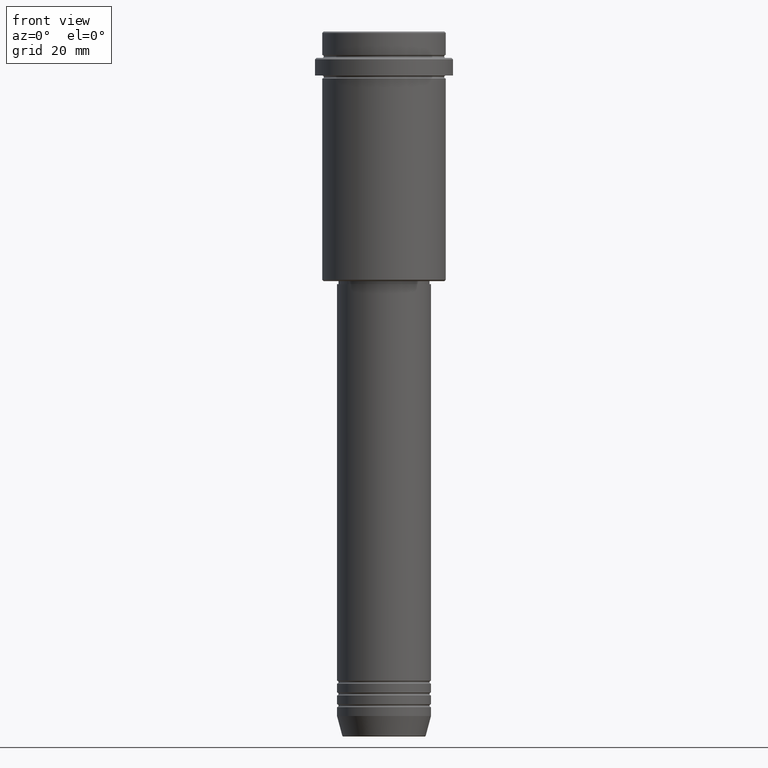
[diagram: clean part render]
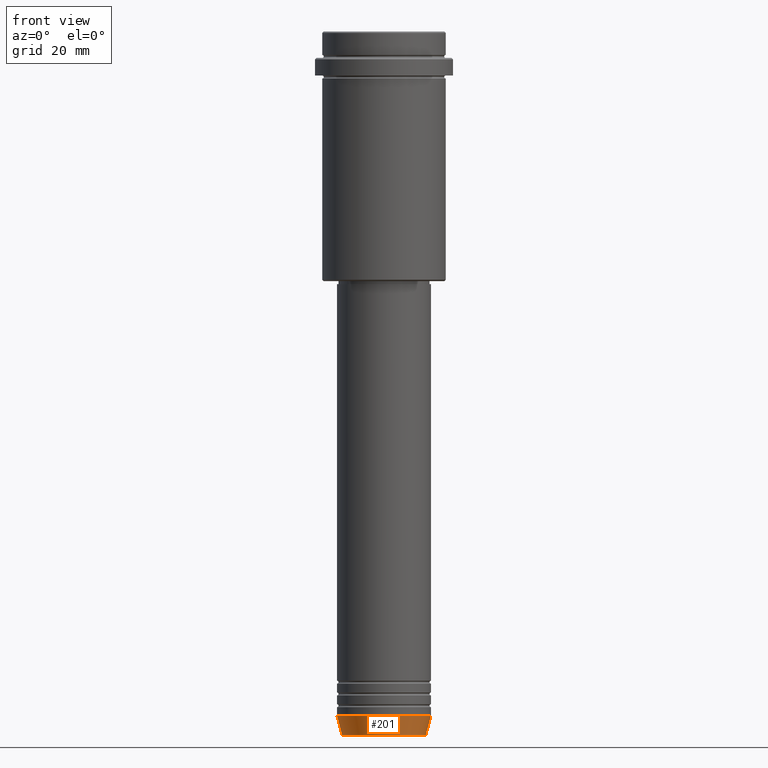
[diagram: same view with one face highlighted and labeled with its STEP entity id]
A machine part, front view. The second image highlights one B-rep face of the part: STEP entity #201.
In plain terms, the highlighted conical surface has half-angle 15 deg.
Its self-contained STEP definition (entity closure, byte-faithful):
#25 = CARTESIAN_POINT ( 'NONE',  ( -16.00000000000000000, 1.959434878635765131E-15, -232.9999999999999716 ) ) ;
#31 = CARTESIAN_POINT ( 'NONE',  ( 0.000000000000000000, 0.000000000000000000, -232.9999999999999716 ) ) ;
#50 = FACE_OUTER_BOUND ( 'NONE', #1009, .T. ) ;
#54 = LINE ( 'NONE', #886, #516 ) ;
#58 = CARTESIAN_POINT ( 'NONE',  ( 0.000000000000000000, 0.000000000000000000, -232.9999999999999716 ) ) ;
#133 = CARTESIAN_POINT ( 'NONE',  ( -16.00000000000000000, 1.959434878635765131E-15, -232.9999999999999716 ) ) ;
#154 = AXIS2_PLACEMENT_3D ( 'NONE', #31, #1354, #1028 ) ;
#201 = ADVANCED_FACE ( 'NONE', ( #50 ), #419, .T. ) ;
#236 = DIRECTION ( 'NONE',  ( 0.2588190451025213501, 0.000000000000000000, 0.9659258262890680902 ) ) ;
#240 = ORIENTED_EDGE ( 'NONE', *, *, #431, .F. ) ;
#252 = VERTEX_POINT ( 'NONE', #509 ) ;
#302 = CARTESIAN_POINT ( 'NONE',  ( -14.22365507213718239, 1.850665122131322942E-15, -239.6294095225512422 ) ) ;
#308 = ORIENTED_EDGE ( 'NONE', *, *, #453, .F. ) ;
#322 = ORIENTED_EDGE ( 'NONE', *, *, #680, .T. ) ;
#350 = CARTESIAN_POINT ( 'NONE',  ( 14.22365507213718239, 0.000000000000000000, -239.6294095225512422 ) ) ;
#400 = CIRCLE ( 'NONE', #484, 14.22365507213718239 ) ;
#406 = VERTEX_POINT ( 'NONE', #133 ) ;
#419 = CONICAL_SURFACE ( 'NONE', #878, 16.00000000000000000, 0.2617993877991500740 ) ;
#431 = EDGE_CURVE ( 'NONE', #767, #406, #1005, .T. ) ;
#453 = EDGE_CURVE ( 'NONE', #406, #252, #561, .T. ) ;
#484 = AXIS2_PLACEMENT_3D ( 'NONE', #710, #1153, #1144 ) ;
#509 = CARTESIAN_POINT ( 'NONE',  ( 16.00000000000000000, 0.000000000000000000, -232.9999999999999716 ) ) ;
#516 = VECTOR ( 'NONE', #236, 1000.000000000000000 ) ;
#561 = CIRCLE ( 'NONE', #154, 16.00000000000000000 ) ;
#675 = VECTOR ( 'NONE', #781, 1000.000000000000000 ) ;
#680 = EDGE_CURVE ( 'NONE', #1221, #252, #54, .T. ) ;
#710 = CARTESIAN_POINT ( 'NONE',  ( 0.000000000000000000, 0.000000000000000000, -239.6294095225512422 ) ) ;
#767 = VERTEX_POINT ( 'NONE', #302 ) ;
#781 = DIRECTION ( 'NONE',  ( -0.2588190451025213501, 3.169619151431772337E-17, 0.9659258262890680902 ) ) ;
#878 = AXIS2_PLACEMENT_3D ( 'NONE', #58, #1361, #1263 ) ;
#886 = CARTESIAN_POINT ( 'NONE',  ( 16.00000000000000000, 0.000000000000000000, -232.9999999999999716 ) ) ;
#1005 = LINE ( 'NONE', #25, #675 ) ;
#1009 = EDGE_LOOP ( 'NONE', ( #240, #1238, #322, #308 ) ) ;
#1028 = DIRECTION ( 'NONE',  ( 1.000000000000000000, 0.000000000000000000, 0.000000000000000000 ) ) ;
#1131 = EDGE_CURVE ( 'NONE', #767, #1221, #400, .T. ) ;
#1144 = DIRECTION ( 'NONE',  ( 1.000000000000000000, 0.000000000000000000, 0.000000000000000000 ) ) ;
#1153 = DIRECTION ( 'NONE',  ( -0.000000000000000000, -0.000000000000000000, 1.000000000000000000 ) ) ;
#1221 = VERTEX_POINT ( 'NONE', #350 ) ;
#1238 = ORIENTED_EDGE ( 'NONE', *, *, #1131, .T. ) ;
#1263 = DIRECTION ( 'NONE',  ( 1.000000000000000000, 0.000000000000000000, 0.000000000000000000 ) ) ;
#1354 = DIRECTION ( 'NONE',  ( -0.000000000000000000, -0.000000000000000000, 1.000000000000000000 ) ) ;
#1361 = DIRECTION ( 'NONE',  ( -0.000000000000000000, -0.000000000000000000, 1.000000000000000000 ) ) ;